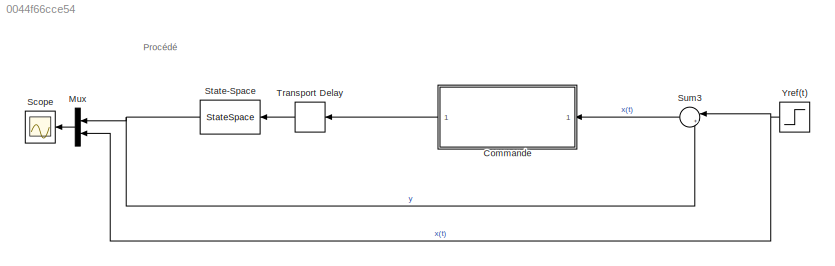
MODEL slx_0044f66cce54
KIND model
CONFIG AbsTol = auto
CONFIG FixedStep = auto
CONFIG MaxStep = auto
CONFIG MinStep = auto
CONFIG RelTol = 1e-6
CONFIG SampleTimeConstraint = Unconstrained
CONFIG Solver = ode45
CONFIG SolverMode = Auto
CONFIG SolverName = ode45
CONFIG StartTime = 0.0
CONFIG StopTime = 20
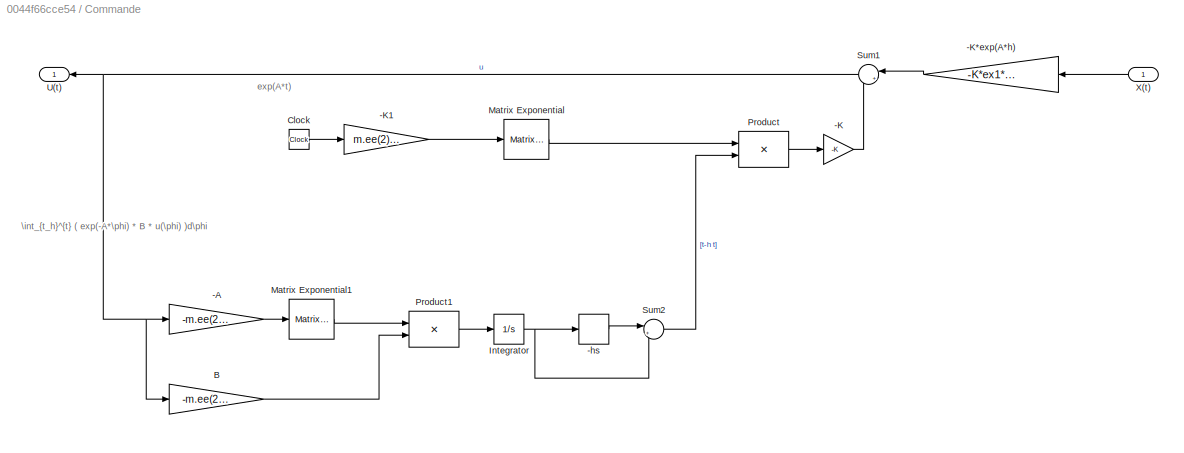
BLOCK [SubSystem] Commande
  Ports = [1, 1]
  RequestExecContextInheritance = off
BLOCK [Gain] Commande/-A
  Gain = -m.ee(2).a
  OutDataTypeStr = Inherit: Inherit via internal rule
  ParamDataTypeStr = Inherit: Inherit via internal rule
  SaturateOnIntegerOverflow = off
BLOCK [Gain] Commande/-K
  Gain = -K
  Multiplication = Matrix(K*u)
  OutDataTypeStr = Inherit: Inherit via internal rule
  ParamDataTypeStr = Inherit: Inherit via internal rule
  SaturateOnIntegerOverflow = off
BLOCK [Gain] Commande/-K*exp(A*h)
  Gain = -K*ex1*ones(2,1)
  OutDataTypeStr = Inherit: Inherit via internal rule
  ParamDataTypeStr = Inherit: Inherit via internal rule
  SaturateOnIntegerOverflow = off
BLOCK [Gain] Commande/-K1
  Gain = m.ee(2).a
  OutDataTypeStr = Inherit: Inherit via internal rule
  ParamDataTypeStr = Inherit: Inherit via internal rule
  SaturateOnIntegerOverflow = off
BLOCK [TransportDelay] Commande/-hs
  DelayTime = h
  Ports = [1, 1]
BLOCK [Gain] Commande/B
  Gain = -m.ee(2).b
  OutDataTypeStr = Inherit: Inherit via internal rule
  ParamDataTypeStr = Inherit: Inherit via internal rule
  SaturateOnIntegerOverflow = off
BLOCK [Clock] Commande/Clock
BLOCK [Integrator] Commande/Integrator
  AbsoluteTolerance = 1e-6
  Ports = [1, 1]
BLOCK [Reference] Commande/Matrix Exponential  REF=dspmtrx3/Matrix
Exponential
  Ports = [1, 1]
  SourceBlock = dspmtrx3/Matrix\nExponential
  SourceType = Matrix Exponential
BLOCK [Reference] Commande/Matrix Exponential1  REF=dspmtrx3/Matrix
Exponential
  Ports = [1, 1]
  SourceBlock = dspmtrx3/Matrix\nExponential
  SourceType = Matrix Exponential
BLOCK [Product] Commande/Product
  InputSameDT = off
  Multiplication = Matrix(*)
  OutDataTypeStr = Inherit: Inherit via internal rule
  Ports = [2, 1]
  RndMeth = Floor
  SaturateOnIntegerOverflow = off
BLOCK [Product] Commande/Product1
  InputSameDT = off
  Multiplication = Matrix(*)
  OutDataTypeStr = Inherit: Inherit via internal rule
  Ports = [2, 1]
  RndMeth = Floor
  SaturateOnIntegerOverflow = off
BLOCK [Sum] Commande/Sum1
  IconShape = round
  InputSameDT = off
  Inputs = |++
  OutDataTypeStr = Inherit: Inherit via internal rule
  Ports = [2, 1]
  SaturateOnIntegerOverflow = off
BLOCK [Sum] Commande/Sum2
  IconShape = round
  InputSameDT = off
  Inputs = |+-
  OutDataTypeStr = Inherit: Inherit via internal rule
  Ports = [2, 1]
  SaturateOnIntegerOverflow = off
BLOCK [Outport] Commande/U(t)
  IconDisplay = Port number
BLOCK [Inport] Commande/X(t)
  IconDisplay = Port number
BLOCK [Mux] Mux
  DisplayOption = bar
  Inputs = 2
  Ports = [2, 1]
BLOCK [Scope] Scope
  Floating = off
  NumInputPorts = 1
  Ports = [1]
BLOCK [StateSpace] State-Space
  A = m.ee(2).a
  B = m.ee(2).b
  C = m.ee(2).c
  D = m.ee(2).d
  Ports = [1, 1]
  X0 = 0
BLOCK [Sum] Sum3
  IconShape = round
  InputSameDT = off
  Inputs = |+-
  OutDataTypeStr = Inherit: Inherit via internal rule
  Ports = [2, 1]
  SaturateOnIntegerOverflow = off
BLOCK [TransportDelay] Transport Delay
  DelayTime = h
  Ports = [1, 1]
BLOCK [Step] Yref(t)
  SampleTime = 0
  Time = 0
ANNOTATION (root): Procédé
ANNOTATION Commande: \int_{t_h}^{t} ( exp(-A*\phi) * B * u(\phi) )d\phi
ANNOTATION Commande: exp(A*t)
LINE Commande/-A:1 -> Commande/Matrix Exponential1:1
LINE Commande/-K*exp(A*h):1 -> Commande/Sum1:1
LINE Commande/-K1:1 -> Commande/Matrix Exponential:1
LINE Commande/-K:1 -> Commande/Sum1:2
LINE Commande/-hs:1 -> Commande/Sum2:1
LINE Commande/B:1 -> Commande/Product1:2
LINE Commande/Clock:1 -> Commande/-K1:1
NET Commande/Integrator:1 -> Commande/-hs:1, Commande/Sum2:2
LINE Commande/Matrix Exponential1:1 -> Commande/Product1:1
LINE Commande/Matrix Exponential:1 -> Commande/Product:1
LINE Commande/Product1:1 -> Commande/Integrator:1
LINE Commande/Product:1 -> Commande/-K:1
NET Commande/Sum1:1 -> Commande/-A:1, Commande/B:1, Commande/U(t):1
LINE Commande/Sum2:1 -> Commande/Product:2
LINE Commande/X(t):1 -> Commande/-K*exp(A*h):1
LINE Commande:1 -> Transport Delay:1
LINE Mux:1 -> Scope:1
NET State-Space:1 -> Mux:1, Sum3:2
LINE Sum3:1 -> Commande:1
LINE Transport Delay:1 -> State-Space:1
NET Yref(t):1 -> Mux:2, Sum3:1
note: NET lines group one-source signal fan-out (src -> all destinations, sorted); 1:1 wires keep LINE
